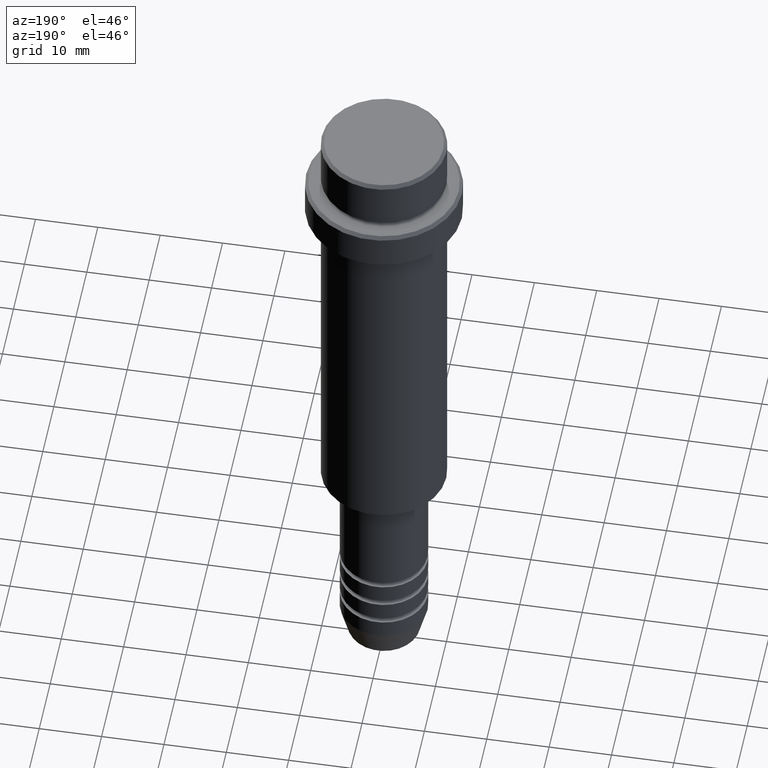
[diagram: clean part render]
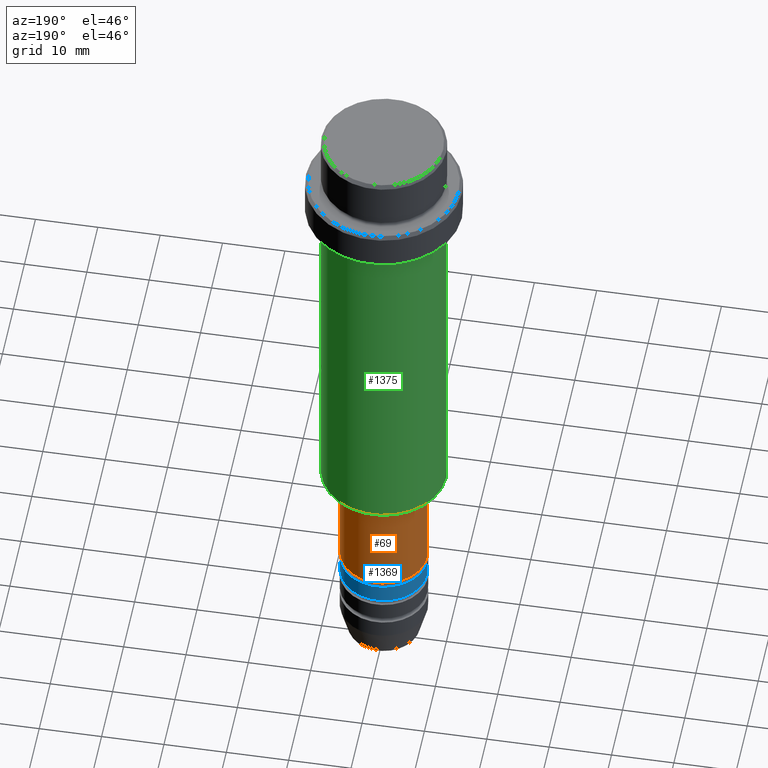
[diagram: same view with three faces highlighted in distinct colors, each labeled with its STEP entity id]
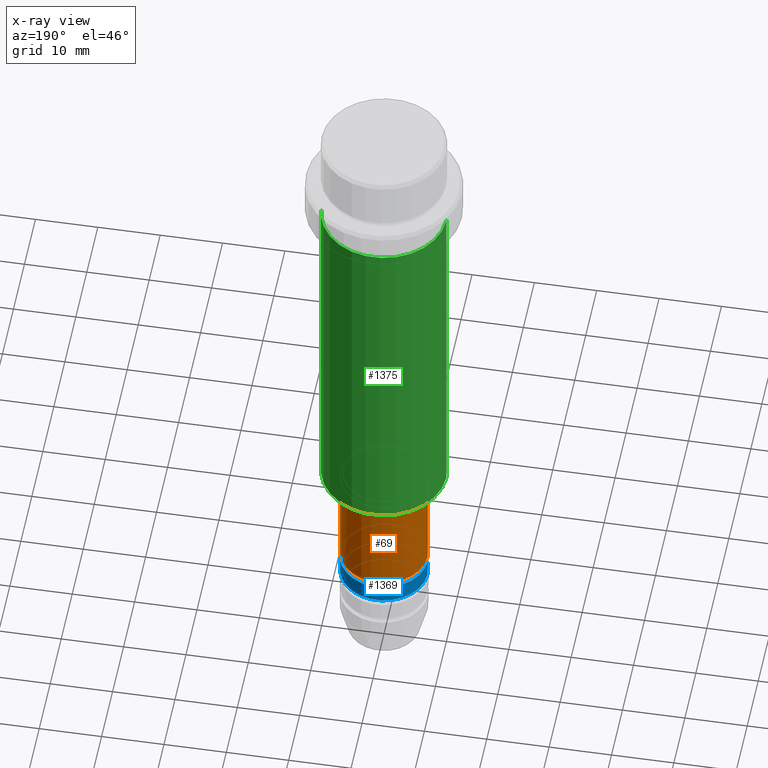
[diagram: x-ray of the same camera — body ghosted, the three highlighted faces saturated]
A machine part, auxiliary view with three faces highlighted in distinct colors.
The next image is the same camera in x-ray (body ghosted, the three faces saturated) — at least one of them is partly hidden behind the body in this view.
Their STEP definitions:

[orange] entity #69 — the highlighted cylindrical surface (partial cylindrical patch) has radius 7 mm, axis along (-0, -0, 1).
#6 = VECTOR ( 'NONE', #1364, 1000.000000000000000 ) ;
#69 = ADVANCED_FACE ( 'NONE', ( #770 ), #212, .T. ) ;
#73 = DIRECTION ( 'NONE',  ( -0.000000000000000000, -0.000000000000000000, 1.000000000000000000 ) ) ;
#121 = EDGE_LOOP ( 'NONE', ( #542, #387, #308, #659 ) ) ;
#157 = AXIS2_PLACEMENT_3D ( 'NONE', #872, #240, #997 ) ;
#182 = EDGE_CURVE ( 'NONE', #493, #533, #569, .T. ) ;
#199 = CARTESIAN_POINT ( 'NONE',  ( 7.000000000000000000, 0.000000000000000000, -92.99999999999988631 ) ) ;
#212 = CYLINDRICAL_SURFACE ( 'NONE', #546, 7.000000000000000000 ) ;
#240 = DIRECTION ( 'NONE',  ( -0.000000000000000000, -0.000000000000000000, 1.000000000000000000 ) ) ;
#259 = AXIS2_PLACEMENT_3D ( 'NONE', #814, #1051, #1164 ) ;
#308 = ORIENTED_EDGE ( 'NONE', *, *, #715, .F. ) ;
#328 = CARTESIAN_POINT ( 'NONE',  ( 0.000000000000000000, 0.000000000000000000, 0.000000000000000000 ) ) ;
#387 = ORIENTED_EDGE ( 'NONE', *, *, #435, .T. ) ;
#435 = EDGE_CURVE ( 'NONE', #679, #944, #928, .T. ) ;
#493 = VERTEX_POINT ( 'NONE', #199 ) ;
#511 = CARTESIAN_POINT ( 'NONE',  ( 7.000000000000000000, 0.000000000000000000, -76.00000000000001421 ) ) ;
#533 = VERTEX_POINT ( 'NONE', #511 ) ;
#541 = CIRCLE ( 'NONE', #157, 7.000000000000000000 ) ;
#542 = ORIENTED_EDGE ( 'NONE', *, *, #1201, .T. ) ;
#546 = AXIS2_PLACEMENT_3D ( 'NONE', #328, #873, #1400 ) ;
#569 = LINE ( 'NONE', #790, #6 ) ;
#659 = ORIENTED_EDGE ( 'NONE', *, *, #182, .F. ) ;
#675 = CARTESIAN_POINT ( 'NONE',  ( -7.000000000000000000, 8.572527594031473190E-16, -92.99999999999988631 ) ) ;
#679 = VERTEX_POINT ( 'NONE', #675 ) ;
#715 = EDGE_CURVE ( 'NONE', #533, #944, #1385, .T. ) ;
#770 = FACE_OUTER_BOUND ( 'NONE', #121, .T. ) ;
#790 = CARTESIAN_POINT ( 'NONE',  ( 7.000000000000000000, 0.000000000000000000, 0.000000000000000000 ) ) ;
#814 = CARTESIAN_POINT ( 'NONE',  ( 0.000000000000000000, 0.000000000000000000, -76.00000000000001421 ) ) ;
#872 = CARTESIAN_POINT ( 'NONE',  ( 0.000000000000000000, 0.000000000000000000, -92.99999999999988631 ) ) ;
#873 = DIRECTION ( 'NONE',  ( -0.000000000000000000, -0.000000000000000000, 1.000000000000000000 ) ) ;
#885 = CARTESIAN_POINT ( 'NONE',  ( -7.000000000000000000, 8.572527594031473190E-16, -76.00000000000001421 ) ) ;
#928 = LINE ( 'NONE', #1038, #1363 ) ;
#944 = VERTEX_POINT ( 'NONE', #885 ) ;
#997 = DIRECTION ( 'NONE',  ( 1.000000000000000000, 0.000000000000000000, 0.000000000000000000 ) ) ;
#1038 = CARTESIAN_POINT ( 'NONE',  ( -7.000000000000000000, 8.572527594031473190E-16, 0.000000000000000000 ) ) ;
#1051 = DIRECTION ( 'NONE',  ( -0.000000000000000000, -0.000000000000000000, 1.000000000000000000 ) ) ;
#1164 = DIRECTION ( 'NONE',  ( 1.000000000000000000, 0.000000000000000000, 0.000000000000000000 ) ) ;
#1201 = EDGE_CURVE ( 'NONE', #493, #679, #541, .T. ) ;
#1363 = VECTOR ( 'NONE', #73, 1000.000000000000000 ) ;
#1364 = DIRECTION ( 'NONE',  ( -0.000000000000000000, -0.000000000000000000, 1.000000000000000000 ) ) ;
#1385 = CIRCLE ( 'NONE', #259, 7.000000000000000000 ) ;
#1400 = DIRECTION ( 'NONE',  ( 1.000000000000000000, 0.000000000000000000, 0.000000000000000000 ) ) ;

[blue] entity #1369 — the highlighted cylindrical surface (partial cylindrical patch) has radius 7 mm, axis along (-0, -0, 1).
#84 = EDGE_CURVE ( 'NONE', #1161, #1132, #737, .T. ) ;
#87 = ORIENTED_EDGE ( 'NONE', *, *, #760, .T. ) ;
#114 = DIRECTION ( 'NONE',  ( -0.000000000000000000, -0.000000000000000000, 1.000000000000000000 ) ) ;
#158 = VERTEX_POINT ( 'NONE', #419 ) ;
#218 = DIRECTION ( 'NONE',  ( -0.000000000000000000, -0.000000000000000000, 1.000000000000000000 ) ) ;
#281 = VECTOR ( 'NONE', #1148, 1000.000000000000000 ) ;
#331 = CARTESIAN_POINT ( 'NONE',  ( -7.000000000000000000, 8.572527594031473190E-16, -93.99999999999988631 ) ) ;
#391 = DIRECTION ( 'NONE',  ( -0.000000000000000000, -0.000000000000000000, 1.000000000000000000 ) ) ;
#415 = ORIENTED_EDGE ( 'NONE', *, *, #84, .F. ) ;
#419 = CARTESIAN_POINT ( 'NONE',  ( -7.000000000000000000, 8.572527594031473190E-16, -96.99999999999988631 ) ) ;
#431 = VECTOR ( 'NONE', #645, 1000.000000000000000 ) ;
#478 = EDGE_CURVE ( 'NONE', #1132, #931, #918, .T. ) ;
#509 = ORIENTED_EDGE ( 'NONE', *, *, #1123, .T. ) ;
#613 = EDGE_LOOP ( 'NONE', ( #509, #87, #821, #415 ) ) ;
#632 = CARTESIAN_POINT ( 'NONE',  ( 7.000000000000000000, 0.000000000000000000, -93.99999999999988631 ) ) ;
#645 = DIRECTION ( 'NONE',  ( -0.000000000000000000, -0.000000000000000000, 1.000000000000000000 ) ) ;
#654 = DIRECTION ( 'NONE',  ( 1.000000000000000000, 0.000000000000000000, 0.000000000000000000 ) ) ;
#687 = AXIS2_PLACEMENT_3D ( 'NONE', #1398, #218, #1202 ) ;
#737 = LINE ( 'NONE', #744, #431 ) ;
#744 = CARTESIAN_POINT ( 'NONE',  ( 7.000000000000000000, 0.000000000000000000, 0.000000000000000000 ) ) ;
#760 = EDGE_CURVE ( 'NONE', #158, #931, #1141, .T. ) ;
#806 = AXIS2_PLACEMENT_3D ( 'NONE', #1321, #114, #654 ) ;
#821 = ORIENTED_EDGE ( 'NONE', *, *, #478, .F. ) ;
#837 = AXIS2_PLACEMENT_3D ( 'NONE', #1042, #391, #1274 ) ;
#918 = CIRCLE ( 'NONE', #687, 7.000000000000000000 ) ;
#931 = VERTEX_POINT ( 'NONE', #331 ) ;
#1042 = CARTESIAN_POINT ( 'NONE',  ( 0.000000000000000000, 0.000000000000000000, 0.000000000000000000 ) ) ;
#1088 = CARTESIAN_POINT ( 'NONE',  ( 7.000000000000000000, 0.000000000000000000, -96.99999999999988631 ) ) ;
#1123 = EDGE_CURVE ( 'NONE', #1161, #158, #1404, .T. ) ;
#1132 = VERTEX_POINT ( 'NONE', #632 ) ;
#1141 = LINE ( 'NONE', #1372, #281 ) ;
#1148 = DIRECTION ( 'NONE',  ( -0.000000000000000000, -0.000000000000000000, 1.000000000000000000 ) ) ;
#1156 = CYLINDRICAL_SURFACE ( 'NONE', #837, 7.000000000000000000 ) ;
#1161 = VERTEX_POINT ( 'NONE', #1088 ) ;
#1202 = DIRECTION ( 'NONE',  ( 1.000000000000000000, 0.000000000000000000, 0.000000000000000000 ) ) ;
#1263 = FACE_OUTER_BOUND ( 'NONE', #613, .T. ) ;
#1274 = DIRECTION ( 'NONE',  ( 1.000000000000000000, 0.000000000000000000, 0.000000000000000000 ) ) ;
#1321 = CARTESIAN_POINT ( 'NONE',  ( 0.000000000000000000, 0.000000000000000000, -96.99999999999988631 ) ) ;
#1369 = ADVANCED_FACE ( 'NONE', ( #1263 ), #1156, .T. ) ;
#1372 = CARTESIAN_POINT ( 'NONE',  ( -7.000000000000000000, 8.572527594031473190E-16, 0.000000000000000000 ) ) ;
#1398 = CARTESIAN_POINT ( 'NONE',  ( 0.000000000000000000, 0.000000000000000000, -93.99999999999988631 ) ) ;
#1404 = CIRCLE ( 'NONE', #806, 7.000000000000000000 ) ;

[green] entity #1375 — the highlighted cylindrical surface (partial cylindrical patch) has radius 10 mm, axis along (-0, -0, 1).
#28 = CARTESIAN_POINT ( 'NONE',  ( 0.000000000000000000, 0.000000000000000000, -74.50000000000000000 ) ) ;
#45 = FACE_OUTER_BOUND ( 'NONE', #949, .T. ) ;
#146 = CIRCLE ( 'NONE', #903, 10.00000000000000000 ) ;
#161 = AXIS2_PLACEMENT_3D ( 'NONE', #275, #610, #1275 ) ;
#271 = ORIENTED_EDGE ( 'NONE', *, *, #950, .F. ) ;
#275 = CARTESIAN_POINT ( 'NONE',  ( 0.000000000000000000, 0.000000000000000000, -16.00000000000000000 ) ) ;
#298 = LINE ( 'NONE', #600, #663 ) ;
#340 = DIRECTION ( 'NONE',  ( -0.000000000000000000, -0.000000000000000000, 1.000000000000000000 ) ) ;
#388 = EDGE_CURVE ( 'NONE', #444, #625, #826, .T. ) ;
#396 = CARTESIAN_POINT ( 'NONE',  ( 10.00000000000000000, 0.000000000000000000, -74.50000000000000000 ) ) ;
#403 = EDGE_CURVE ( 'NONE', #788, #625, #298, .T. ) ;
#444 = VERTEX_POINT ( 'NONE', #1059 ) ;
#446 = CARTESIAN_POINT ( 'NONE',  ( -10.00000000000000000, 1.224646799147353256E-15, -16.00000000000000000 ) ) ;
#505 = DIRECTION ( 'NONE',  ( 1.000000000000000000, 0.000000000000000000, 0.000000000000000000 ) ) ;
#600 = CARTESIAN_POINT ( 'NONE',  ( -10.00000000000000000, 1.224646799147353256E-15, 0.000000000000000000 ) ) ;
#610 = DIRECTION ( 'NONE',  ( -0.000000000000000000, -0.000000000000000000, 1.000000000000000000 ) ) ;
#625 = VERTEX_POINT ( 'NONE', #446 ) ;
#663 = VECTOR ( 'NONE', #1163, 1000.000000000000000 ) ;
#682 = AXIS2_PLACEMENT_3D ( 'NONE', #734, #1058, #505 ) ;
#714 = VERTEX_POINT ( 'NONE', #396 ) ;
#734 = CARTESIAN_POINT ( 'NONE',  ( 0.000000000000000000, 0.000000000000000000, 0.000000000000000000 ) ) ;
#755 = VECTOR ( 'NONE', #340, 1000.000000000000000 ) ;
#788 = VERTEX_POINT ( 'NONE', #1066 ) ;
#826 = CIRCLE ( 'NONE', #161, 10.00000000000000000 ) ;
#879 = DIRECTION ( 'NONE',  ( -0.000000000000000000, -0.000000000000000000, 1.000000000000000000 ) ) ;
#880 = ORIENTED_EDGE ( 'NONE', *, *, #1085, .T. ) ;
#902 = ORIENTED_EDGE ( 'NONE', *, *, #388, .F. ) ;
#903 = AXIS2_PLACEMENT_3D ( 'NONE', #28, #879, #1349 ) ;
#949 = EDGE_LOOP ( 'NONE', ( #880, #1110, #902, #271 ) ) ;
#950 = EDGE_CURVE ( 'NONE', #714, #444, #1331, .T. ) ;
#1058 = DIRECTION ( 'NONE',  ( -0.000000000000000000, -0.000000000000000000, 1.000000000000000000 ) ) ;
#1059 = CARTESIAN_POINT ( 'NONE',  ( 10.00000000000000000, 0.000000000000000000, -16.00000000000000000 ) ) ;
#1066 = CARTESIAN_POINT ( 'NONE',  ( -10.00000000000000000, 1.224646799147353256E-15, -74.50000000000000000 ) ) ;
#1085 = EDGE_CURVE ( 'NONE', #714, #788, #146, .T. ) ;
#1110 = ORIENTED_EDGE ( 'NONE', *, *, #403, .T. ) ;
#1163 = DIRECTION ( 'NONE',  ( -0.000000000000000000, -0.000000000000000000, 1.000000000000000000 ) ) ;
#1168 = CYLINDRICAL_SURFACE ( 'NONE', #682, 10.00000000000000000 ) ;
#1225 = CARTESIAN_POINT ( 'NONE',  ( 10.00000000000000000, 0.000000000000000000, 0.000000000000000000 ) ) ;
#1275 = DIRECTION ( 'NONE',  ( 1.000000000000000000, 0.000000000000000000, 0.000000000000000000 ) ) ;
#1331 = LINE ( 'NONE', #1225, #755 ) ;
#1349 = DIRECTION ( 'NONE',  ( -1.000000000000000000, 0.000000000000000000, 0.000000000000000000 ) ) ;
#1375 = ADVANCED_FACE ( 'NONE', ( #45 ), #1168, .T. ) ;